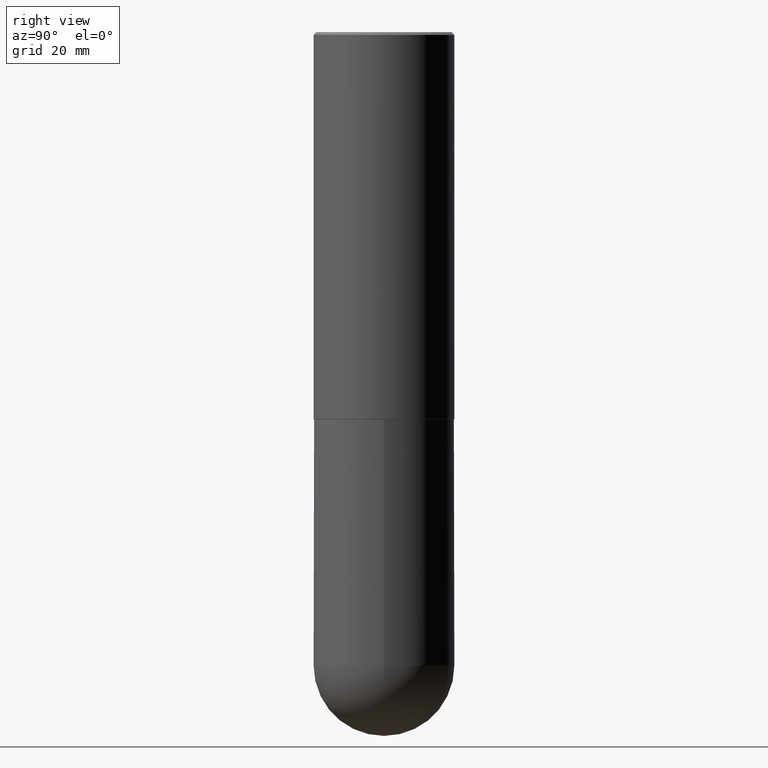
[diagram: clean part render]
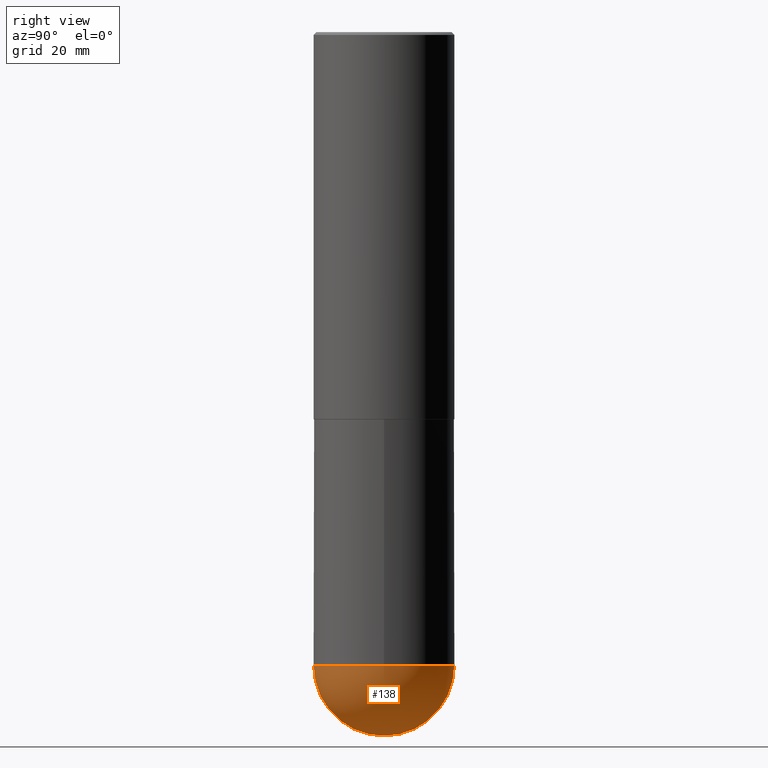
[diagram: same view with one face highlighted and labeled with its STEP entity id]
A machine part, right view. The second image highlights one B-rep face of the part: STEP entity #138.
In plain terms, the highlighted spherical surface has radius 12.7 mm.
Its self-contained STEP definition (entity closure, byte-faithful):
#1 = DIRECTION ( 'NONE',  ( 6.982962677686266711E-15, 1.000000000000000000, 0.000000000000000000 ) ) ;
#3 = ORIENTED_EDGE ( 'NONE', *, *, #215, .F. ) ;
#5 = AXIS2_PLACEMENT_3D ( 'NONE', #356, #359, #176 ) ;
#7 = VERTEX_POINT ( 'NONE', #305 ) ;
#31 = DIRECTION ( 'NONE',  ( -1.000000000000000000, 6.982962677686265922E-15, -4.883557194083113462E-29 ) ) ;
#34 = CARTESIAN_POINT ( 'NONE',  ( 1.067348984991922956E-28, -1.618584839293420562E-14, -4.500000000000000000 ) ) ;
#41 = DIRECTION ( 'NONE',  ( 1.000000000000000000, -6.982962677686265922E-15, 4.883557194083112340E-29 ) ) ;
#68 = VERTEX_POINT ( 'NONE', #74 ) ;
#74 = CARTESIAN_POINT ( 'NONE',  ( 1.191760341024128201E-28, -1.790097289237709482E-14, -5.000000000000000000 ) ) ;
#102 = CIRCLE ( 'NONE', #5, 0.5000000000000002220 ) ;
#116 = EDGE_CURVE ( 'NONE', #126, #7, #121, .T. ) ;
#120 = VERTEX_POINT ( 'NONE', #249 ) ;
#121 = CIRCLE ( 'NONE', #204, 0.5000000000000000000 ) ;
#125 = DIRECTION ( 'NONE',  ( 1.000000000000000000, -6.982962677686262766E-15, 0.000000000000000000 ) ) ;
#126 = VERTEX_POINT ( 'NONE', #129 ) ;
#129 = CARTESIAN_POINT ( 'NONE',  ( -3.552713678800393250E-15, -0.5000000000000160982, -4.499999999999998224 ) ) ;
#138 = ADVANCED_FACE ( 'NONE', ( #259 ), #381, .T. ) ;
#140 = CIRCLE ( 'NONE', #295, 0.5000000000000000000 ) ;
#157 = ORIENTED_EDGE ( 'NONE', *, *, #116, .F. ) ;
#176 = DIRECTION ( 'NONE',  ( -7.105427357601001859E-15, -1.000000000000000000, 0.000000000000000000 ) ) ;
#194 = DIRECTION ( 'NONE',  ( -2.445468806185136597E-29, 3.491481338843145583E-15, 1.000000000000000000 ) ) ;
#204 = AXIS2_PLACEMENT_3D ( 'NONE', #400, #194, #125 ) ;
#211 = CARTESIAN_POINT ( 'NONE',  ( 1.100460962783311244E-28, -1.571166602479415374E-14, -4.499999999999999112 ) ) ;
#215 = EDGE_CURVE ( 'NONE', #68, #126, #102, .T. ) ;
#221 = EDGE_CURVE ( 'NONE', #68, #120, #339, .T. ) ;
#231 = CARTESIAN_POINT ( 'NONE',  ( 1.067348984991922956E-28, -1.618584839293420562E-14, -4.500000000000000000 ) ) ;
#236 = ORIENTED_EDGE ( 'NONE', *, *, #254, .F. ) ;
#249 = CARTESIAN_POINT ( 'NONE',  ( 3.491481338843242218E-15, 0.4999999999999841238, -4.500000000000000888 ) ) ;
#254 = EDGE_CURVE ( 'NONE', #7, #120, #140, .T. ) ;
#259 = FACE_OUTER_BOUND ( 'NONE', #285, .T. ) ;
#265 = AXIS2_PLACEMENT_3D ( 'NONE', #34, #31, #325 ) ;
#285 = EDGE_LOOP ( 'NONE', ( #3, #369, #236, #157 ) ) ;
#295 = AXIS2_PLACEMENT_3D ( 'NONE', #211, #390, #304 ) ;
#304 = DIRECTION ( 'NONE',  ( 1.000000000000000000, -6.982962677686262766E-15, 0.000000000000000000 ) ) ;
#305 = CARTESIAN_POINT ( 'NONE',  ( 0.5000000000000000000, -1.614810119214953752E-14, -4.499999999999999112 ) ) ;
#325 = DIRECTION ( 'NONE',  ( 6.982962677686265922E-15, 1.000000000000000000, -3.278217592397114284E-15 ) ) ;
#339 = CIRCLE ( 'NONE', #386, 0.5000000000000002220 ) ;
#356 = CARTESIAN_POINT ( 'NONE',  ( 1.067348984991922956E-28, -1.618584839293420562E-14, -4.500000000000000000 ) ) ;
#359 = DIRECTION ( 'NONE',  ( -1.000000000000000000, 7.105427357601001070E-15, -4.926315508542082329E-29 ) ) ;
#369 = ORIENTED_EDGE ( 'NONE', *, *, #221, .T. ) ;
#381 = SPHERICAL_SURFACE ( 'NONE', #265, 0.5000000000000002220 ) ;
#386 = AXIS2_PLACEMENT_3D ( 'NONE', #231, #41, #1 ) ;
#390 = DIRECTION ( 'NONE',  ( -2.445468806185136597E-29, 3.491481338843145583E-15, 1.000000000000000000 ) ) ;
#400 = CARTESIAN_POINT ( 'NONE',  ( 1.100460962783311244E-28, -1.571166602479415374E-14, -4.499999999999999112 ) ) ;